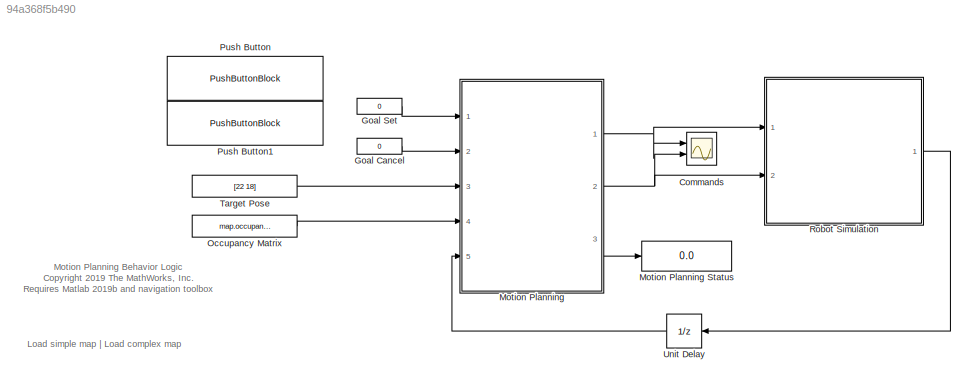
MODEL slx_94a368f5b490
KIND model
CONFIG AbsTol = auto
CONFIG EnableMultiTasking = off
CONFIG FixedStep = auto
CONFIG InitFcn = close all;\nclear showPath;
CONFIG MaxStep = auto
CONFIG MinStep = auto
CONFIG PreLoadFcn = rlMobileRobotParams;
CONFIG RelTol = 1e-3
CONFIG SampleTimeConstraint = Unconstrained
CONFIG Solver = ode23t
CONFIG SolverName = ode23t
CONFIG StartTime = 0.0
CONFIG StopTime = inf
WORKSPACE source: mxarray member
WORKSPACE mapForSim: object (value not decoded)
WORKSPACE occGrid: robotics.BinaryOccupancyGrid (value not decoded)
BLOCK [Scope] Commands
  Floating = off
  NumInputPorts = 2
  Ports = [2]
  ScopeSpecificationString = Simulink.scopes.TimeScopeBlockCfg('CurrentConfiguration', extmgr.ConfigurationSet(extmgr.Configuration('Core','General UI',true),extmgr.Configuration('Core','Source UI',true),extmgr.Configuration('Sources','WiredSimulink',true),extmgr.Configuration('Visuals','Time Domain',true,'SerializedDisplays',{struct('MinYLimReal','-1.00000','MaxYLimReal','1.00000','YLabelReal','','MinYLimMag','0.00000','MaxY...<+1991ch>
BLOCK [Constant] Goal Cancel
  Value = 0
BLOCK [Constant] Goal Set
  Value = 0
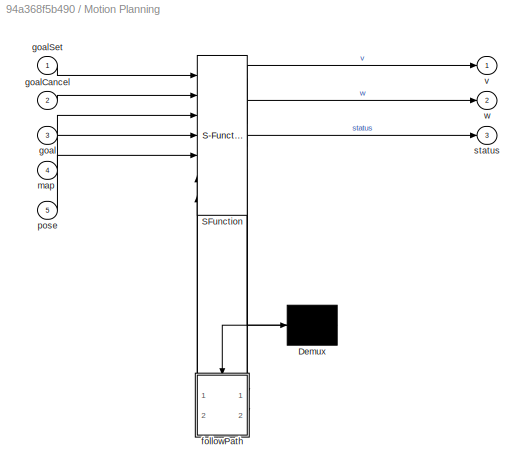
BLOCK [SubSystem] Motion Planning
  BlockKeywords = __PRM__SERIALIZED__DATA__:Stateflow Chart,Stateflow Diagram
  ErrorFcn = Stateflow.Translate.translate
  PermitHierarchicalResolution = ExplicitOnly
  Ports = [5, 3]
  RequestExecContextInheritance = off
  SFBlockType = Chart
  TreatAsAtomicUnit = on
BLOCK [Display] Motion Planning Status
  Decimation = 1
  Ports = [1]
BLOCK [Demux] Motion Planning/ Demux 
  Outputs = 1
  Ports = [1, 1]
BLOCK [S-Function] Motion Planning/ SFunction 
  EnableBusSupport = on
  FunctionName = sf_sfun
  Parameters = goalCheckDistance,prmConnectionDistance,prmNumNodes
  PortCounts = [7 6]
  Ports = [7, 6]
  SFcnIsStateOwnerBlock = off
  SFunctionDeploymentMode = off
  Tag = Stateflow S-Function 3
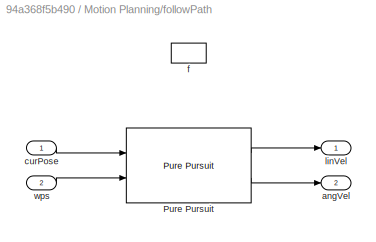
BLOCK [SubSystem] Motion Planning/followPath
  Ports = [2, 2, 0, 1]
  PreDeleteFcn = Stateflow.SLINSF.SimulinkMan.removePreDeleteFcn
  RequestExecContextInheritance = off
  UndoDeleteFcn = Stateflow.SLINSF.SimulinkMan.restorePreDeleteFcn
BLOCK [Reference] Motion Planning/followPath/Pure Pursuit  REF=robotalgslib/Pure Pursuit
  Ports = [2, 2]
  SourceBlock = robotalgslib/Pure Pursuit
  SourceProductBaseCode = RO
  SourceProductName = Robotics System Toolbox
  SourceType = nav.slalgs.internal.PurePursuit
BLOCK [Outport] Motion Planning/followPath/angVel
  IconDisplay = Port number
  Port = 2
BLOCK [Inport] Motion Planning/followPath/curPose
  IconDisplay = Port number
  OutDataTypeStr = double
  PortDimensions = 3
  SignalType = real
  VarSizeSig = No
BLOCK [TriggerPort] Motion Planning/followPath/f
  CopyFcn = Stateflow.SLINSF.SimulinkMan.removeBlockPreDeleteFcn
  Ports = []
  PreDeleteFcn = Stateflow.SLINSF.SimulinkMan.unsafePredeleteFcn
  StatesWhenEnabling = held
  TriggerType = function-call
  VariantControl = (inherit)
BLOCK [Outport] Motion Planning/followPath/linVel
  IconDisplay = Port number
BLOCK [Inport] Motion Planning/followPath/wps
  IconDisplay = Port number
  OutDataTypeStr = double
  Port = 2
  PortDimensions = [prmMaxWaypoints 2]
  SignalType = real
  VarSizeSig = Yes
BLOCK [Inport] Motion Planning/goal
  IconDisplay = Port number
  Port = 3
BLOCK [Inport] Motion Planning/goalCancel
  IconDisplay = Port number
  Port = 2
BLOCK [Inport] Motion Planning/goalSet
  IconDisplay = Port number
BLOCK [Inport] Motion Planning/map
  IconDisplay = Port number
  Port = 4
BLOCK [Inport] Motion Planning/pose
  IconDisplay = Port number
  Port = 5
BLOCK [Outport] Motion Planning/status
  IconDisplay = Port number
  Port = 3
BLOCK [Outport] Motion Planning/v
  IconDisplay = Port number
BLOCK [Outport] Motion Planning/w
  IconDisplay = Port number
  Port = 2
BLOCK [Constant] Occupancy Matrix
  Value = map.occupancyMatrix
BLOCK [PushButtonBlock] Push Button
  ButtonText = Set Nav Goal
BLOCK [PushButtonBlock] Push Button1
  ButtonText = Cancel Nav Goal
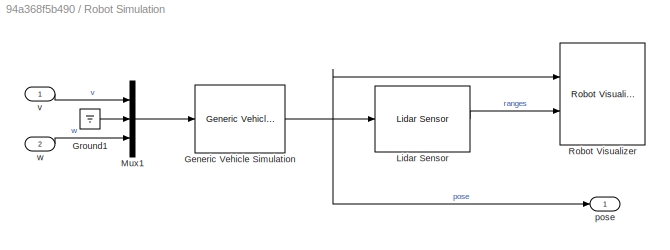
BLOCK [SubSystem] Robot Simulation
  Ports = [2, 1]
  RequestExecContextInheritance = off
BLOCK [Reference] Robot Simulation/Generic Vehicle Simulation  REF=mobileRoboticsLib/Utilities/Generic Vehicle Simulation
  Ports = [1, 1]
  SourceBlock = mobileRoboticsLib/Utilities/Generic Vehicle Simulation
  SourceProductName = Mobile Robotics Simulation Library
  SourceType = Generic Vehicle Simulation
BLOCK [Ground] Robot Simulation/Ground1
BLOCK [Reference] Robot Simulation/Lidar Sensor  REF=mobileRoboticsLib/Environments/Lidar Sensor
  Ports = [1, 1]
  SourceBlock = mobileRoboticsLib/Environments/Lidar Sensor
  SourceProductName = Ground Vehicles Library
  SourceType = LidarSensor
BLOCK [Mux] Robot Simulation/Mux1
  DisplayOption = bar
  Inputs = 3
  Ports = [3, 1]
BLOCK [Reference] Robot Simulation/Robot Visualizer  REF=mobileRoboticsLib/Environments/Robot Visualizer
  Ports = [2]
  Priority = 99
  SourceBlock = mobileRoboticsLib/Environments/Robot Visualizer
  SourceProductName = Ground Vehicles Library
  SourceType = Visualizer2D
BLOCK [Outport] Robot Simulation/pose
  IconDisplay = Port number
  VectorParamsAs1DForOutWhenUnconnected = off
BLOCK [Inport] Robot Simulation/v
  IconDisplay = Port number
BLOCK [Inport] Robot Simulation/w
  IconDisplay = Port number
  Port = 2
BLOCK [Constant] Target Pose
  Value = [22 18]
BLOCK [UnitDelay] Unit Delay
  HasFrameUpgradeWarning = on
  InitialCondition = [initX;initY;initTheta]
  SampleTime = -1
ANNOTATION (root): Load simple map | Load complex map
ANNOTATION (root): Motion Planning Behavior Logic <copyright redacted>
LINE Goal Cancel:1 -> Motion Planning:2
LINE Goal Set:1 -> Motion Planning:1
NET Motion Planning:1 -> Commands:1, Robot Simulation:1
NET Motion Planning:2 -> Commands:2, Robot Simulation:2
LINE Motion Planning:3 -> Motion Planning Status:1
LINE Occupancy Matrix:1 -> Motion Planning:4
NET Robot Simulation/Generic Vehicle Simulation:1 -> Robot Simulation/Lidar Sensor:1, Robot Simulation/Robot Visualizer:1, Robot Simulation/pose:1
LINE Robot Simulation/Ground1:1 -> Robot Simulation/Mux1:2
LINE Robot Simulation/Lidar Sensor:1 -> Robot Simulation/Robot Visualizer:2
LINE Robot Simulation/Mux1:1 -> Robot Simulation/Generic Vehicle Simulation:1
LINE Robot Simulation/v:1 -> Robot Simulation/Mux1:1
LINE Robot Simulation/w:1 -> Robot Simulation/Mux1:3
LINE Robot Simulation:1 -> Unit Delay:1
LINE Target Pose:1 -> Motion Planning:3
LINE Unit Delay:1 -> Motion Planning:5
note: NET lines group one-source signal fan-out (src -> all destinations, sorted); 1:1 wires keep LINE
CHART Motion Planning states=5 transitions=12
  STATE_LABEL 'ExecuteMotionPlan\n'
  STATE_LABEL '{pathFound = false;}'
  STATE_LABEL '[pathFound]'
  STATE_LABEL '% Plan a path\n{\n[waypoints,pathFound] = ... \ncomputePath(goal,pose,map);\n}'
  STATE_LABEL '% If a path exists, follow it\n{\n[v,w] = followPath(pose,waypoints);\nstatus = MotionPlanning.FOLLOWING;\n}'
  STATE_LABEL 'Standby\nen:\nv = 0;\nw = 0;'
  STATE_LABEL 'done = isGoalReached'
  STATE_LABEL '{\ndist = sqrt((goal(1)-pose(1))^2 + (goal(2)-pose(2))^2);\ndone = (dist <= goalCheckDistance);\n}'
  STATE_LABEL '[wps,found] = computePath(tgtPose,curPose,occMat)'
  STATE_LABEL "SCRIPT:\nfunction [wps,found] = computePath(tgtPose,curPose,occMat)\n\n% Initialize path planner on initialization\ncoder.extrinsic('showPath')\npersistent planner firstTime\nif isempty(planner)\n    occMap = occupancyMap(occMat,2);\n    inflate(occMap,0.2); % Inflate since there is no obstacle avoidance\n    planner = mobileRobotPRM(occMap);\n    planner.ConnectionDistance = prmConnectionDistance;\n    plan...<+981ch>"
  STATE_LABEL '[linVel,angVel] = followPath(curPose,wps)'
